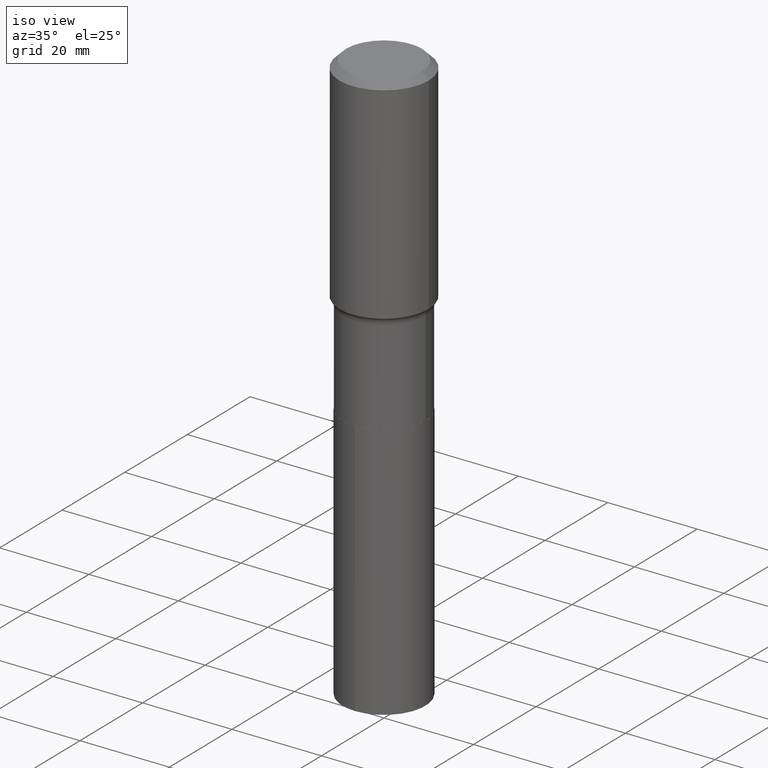
[diagram: clean part render]
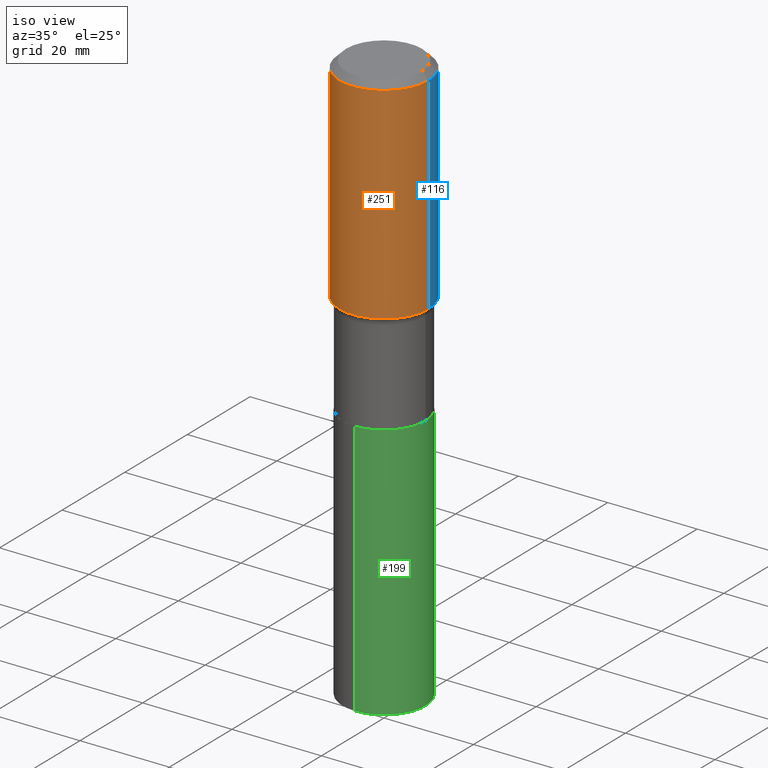
[diagram: same view with three faces highlighted in distinct colors, each labeled with its STEP entity id]
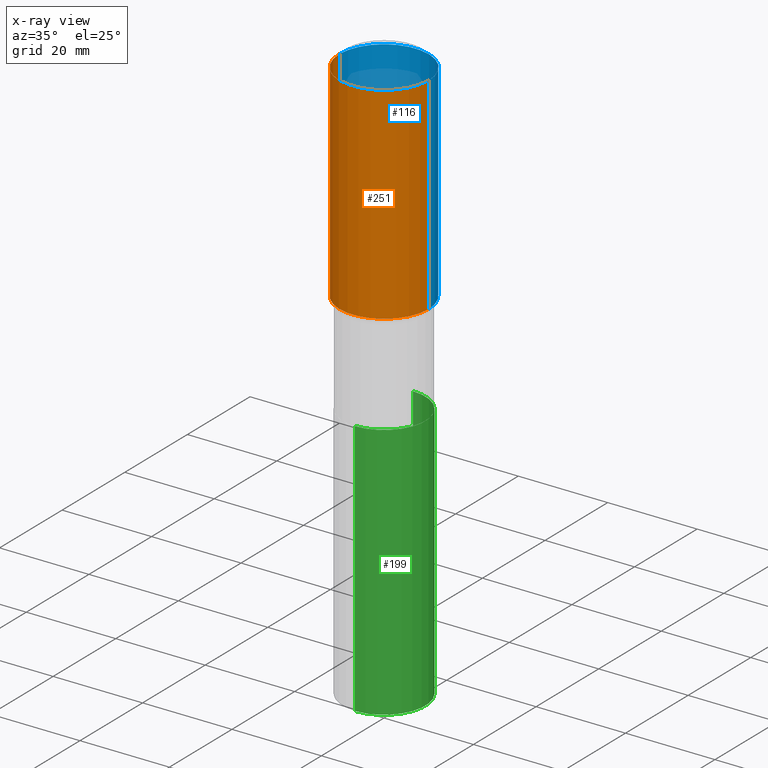
[diagram: x-ray of the same camera — body ghosted, the three highlighted faces saturated]
A machine part, iso view with three faces highlighted in distinct colors.
The next image is the same camera in x-ray (body ghosted, the three faces saturated) — at least one of them is partly hidden behind the body in this view.
Their STEP definitions:

[orange] entity #251 — the highlighted cylindrical surface (partial cylindrical patch) has radius 10 mm, axis along (-0, 0, 1).
#11 = EDGE_CURVE ( 'NONE', #316, #181, #106, .T. ) ;
#21 = ORIENTED_EDGE ( 'NONE', *, *, #435, .F. ) ;
#28 = VERTEX_POINT ( 'NONE', #291 ) ;
#38 = CARTESIAN_POINT ( 'NONE',  ( 4.590077173864083057E-29, -6.553413707777653647E-15, -1.876972285336354629 ) ) ;
#51 = DIRECTION ( 'NONE',  ( 1.000000000000000000, -6.982962677686266711E-15, 4.876176775795935793E-29 ) ) ;
#87 = CARTESIAN_POINT ( 'NONE',  ( -0.3937000000000001054, 2.797406750687515181E-15, -1.936584745033357016E-29 ) ) ;
#94 = ORIENTED_EDGE ( 'NONE', *, *, #125, .T. ) ;
#100 = VERTEX_POINT ( 'NONE', #163 ) ;
#106 = LINE ( 'NONE', #267, #306 ) ;
#125 = EDGE_CURVE ( 'NONE', #28, #316, #448, .T. ) ;
#131 = CARTESIAN_POINT ( 'NONE',  ( 1.444171603492640671E-30, -2.061894304653831493E-16, -0.05905500000000033639 ) ) ;
#142 = AXIS2_PLACEMENT_3D ( 'NONE', #131, #170, #395 ) ;
#163 = CARTESIAN_POINT ( 'NONE',  ( -0.3937000000000000499, -5.823948184340036238E-16, -0.05905500000000033639 ) ) ;
#169 = VECTOR ( 'NONE', #171, 39.37007874015748143 ) ;
#170 = DIRECTION ( 'NONE',  ( -2.445468806185136597E-29, 3.491481338843145583E-15, 1.000000000000000000 ) ) ;
#171 = DIRECTION ( 'NONE',  ( -2.445468806185136877E-29, 3.491481338843145188E-15, 1.000000000000000000 ) ) ;
#181 = VERTEX_POINT ( 'NONE', #335 ) ;
#184 = AXIS2_PLACEMENT_3D ( 'NONE', #393, #478, #51 ) ;
#219 = ORIENTED_EDGE ( 'NONE', *, *, #11, .T. ) ;
#236 = CARTESIAN_POINT ( 'NONE',  ( 0.3937000000000002164, -9.302606113982739230E-15, -1.876972285336354629 ) ) ;
#237 = DIRECTION ( 'NONE',  ( -2.445468806185136597E-29, 3.491481338843145583E-15, 1.000000000000000000 ) ) ;
#249 = LINE ( 'NONE', #87, #169 ) ;
#251 = ADVANCED_FACE ( 'NONE', ( #325 ), #397, .T. ) ;
#253 = EDGE_LOOP ( 'NONE', ( #21, #94, #219, #388 ) ) ;
#266 = AXIS2_PLACEMENT_3D ( 'NONE', #38, #237, #341 ) ;
#267 = CARTESIAN_POINT ( 'NONE',  ( 0.3937000000000001054, -2.749192406205084005E-15, 1.919750796630860452E-29 ) ) ;
#291 = CARTESIAN_POINT ( 'NONE',  ( -0.3937000000000002164, -3.756006957090138071E-15, -1.876972285336354629 ) ) ;
#306 = VECTOR ( 'NONE', #410, 39.37007874015748143 ) ;
#316 = VERTEX_POINT ( 'NONE', #236 ) ;
#325 = FACE_OUTER_BOUND ( 'NONE', #253, .T. ) ;
#335 = CARTESIAN_POINT ( 'NONE',  ( 0.3937000000000000499, -2.955381836670466588E-15, -0.05905500000000033639 ) ) ;
#341 = DIRECTION ( 'NONE',  ( 1.000000000000000000, -6.982962677686266711E-15, 0.000000000000000000 ) ) ;
#377 = EDGE_CURVE ( 'NONE', #100, #181, #471, .T. ) ;
#388 = ORIENTED_EDGE ( 'NONE', *, *, #377, .F. ) ;
#393 = CARTESIAN_POINT ( 'NONE',  ( 0.000000000000000000, 0.000000000000000000, 0.000000000000000000 ) ) ;
#395 = DIRECTION ( 'NONE',  ( 1.000000000000000000, -6.982962677686265922E-15, 0.000000000000000000 ) ) ;
#397 = CYLINDRICAL_SURFACE ( 'NONE', #184, 0.3937000000000001054 ) ;
#410 = DIRECTION ( 'NONE',  ( -2.445468806185136877E-29, 3.491481338843145188E-15, 1.000000000000000000 ) ) ;
#435 = EDGE_CURVE ( 'NONE', #28, #100, #249, .T. ) ;
#448 = CIRCLE ( 'NONE', #266, 0.3937000000000002164 ) ;
#471 = CIRCLE ( 'NONE', #142, 0.3937000000000000499 ) ;
#478 = DIRECTION ( 'NONE',  ( -2.445468806185136597E-29, 3.491481338843145583E-15, 1.000000000000000000 ) ) ;

[blue] entity #116 — the highlighted cylindrical surface (partial cylindrical patch) has radius 10 mm, axis along (-0, 0, 1).
#11 = EDGE_CURVE ( 'NONE', #316, #181, #106, .T. ) ;
#18 = CARTESIAN_POINT ( 'NONE',  ( 1.444171603492640671E-30, -2.061894304653831493E-16, -0.05905500000000033639 ) ) ;
#22 = CIRCLE ( 'NONE', #69, 0.3937000000000000499 ) ;
#28 = VERTEX_POINT ( 'NONE', #291 ) ;
#69 = AXIS2_PLACEMENT_3D ( 'NONE', #18, #284, #93 ) ;
#85 = CARTESIAN_POINT ( 'NONE',  ( 0.000000000000000000, 0.000000000000000000, 0.000000000000000000 ) ) ;
#87 = CARTESIAN_POINT ( 'NONE',  ( -0.3937000000000001054, 2.797406750687515181E-15, -1.936584745033357016E-29 ) ) ;
#93 = DIRECTION ( 'NONE',  ( 1.000000000000000000, -6.982962677686265922E-15, 0.000000000000000000 ) ) ;
#100 = VERTEX_POINT ( 'NONE', #163 ) ;
#106 = LINE ( 'NONE', #267, #306 ) ;
#116 = ADVANCED_FACE ( 'NONE', ( #454 ), #278, .T. ) ;
#158 = DIRECTION ( 'NONE',  ( 1.000000000000000000, -6.982962677686266711E-15, 4.876176775795935793E-29 ) ) ;
#163 = CARTESIAN_POINT ( 'NONE',  ( -0.3937000000000000499, -5.823948184340036238E-16, -0.05905500000000033639 ) ) ;
#169 = VECTOR ( 'NONE', #171, 39.37007874015748143 ) ;
#171 = DIRECTION ( 'NONE',  ( -2.445468806185136877E-29, 3.491481338843145188E-15, 1.000000000000000000 ) ) ;
#181 = VERTEX_POINT ( 'NONE', #335 ) ;
#206 = DIRECTION ( 'NONE',  ( -2.445468806185136597E-29, 3.491481338843145583E-15, 1.000000000000000000 ) ) ;
#207 = ORIENTED_EDGE ( 'NONE', *, *, #383, .T. ) ;
#216 = DIRECTION ( 'NONE',  ( 1.000000000000000000, -6.982962677686266711E-15, 0.000000000000000000 ) ) ;
#234 = DIRECTION ( 'NONE',  ( -2.445468806185136597E-29, 3.491481338843145583E-15, 1.000000000000000000 ) ) ;
#236 = CARTESIAN_POINT ( 'NONE',  ( 0.3937000000000002164, -9.302606113982739230E-15, -1.876972285336354629 ) ) ;
#245 = CARTESIAN_POINT ( 'NONE',  ( 4.590077173864083057E-29, -6.553413707777653647E-15, -1.876972285336354629 ) ) ;
#249 = LINE ( 'NONE', #87, #169 ) ;
#262 = ORIENTED_EDGE ( 'NONE', *, *, #435, .T. ) ;
#267 = CARTESIAN_POINT ( 'NONE',  ( 0.3937000000000001054, -2.749192406205084005E-15, 1.919750796630860452E-29 ) ) ;
#278 = CYLINDRICAL_SURFACE ( 'NONE', #407, 0.3937000000000001054 ) ;
#284 = DIRECTION ( 'NONE',  ( -2.445468806185136597E-29, 3.491481338843145583E-15, 1.000000000000000000 ) ) ;
#287 = ORIENTED_EDGE ( 'NONE', *, *, #331, .F. ) ;
#291 = CARTESIAN_POINT ( 'NONE',  ( -0.3937000000000002164, -3.756006957090138071E-15, -1.876972285336354629 ) ) ;
#306 = VECTOR ( 'NONE', #410, 39.37007874015748143 ) ;
#316 = VERTEX_POINT ( 'NONE', #236 ) ;
#331 = EDGE_CURVE ( 'NONE', #181, #100, #22, .T. ) ;
#335 = CARTESIAN_POINT ( 'NONE',  ( 0.3937000000000000499, -2.955381836670466588E-15, -0.05905500000000033639 ) ) ;
#354 = AXIS2_PLACEMENT_3D ( 'NONE', #245, #206, #216 ) ;
#383 = EDGE_CURVE ( 'NONE', #316, #28, #415, .T. ) ;
#406 = ORIENTED_EDGE ( 'NONE', *, *, #11, .F. ) ;
#407 = AXIS2_PLACEMENT_3D ( 'NONE', #85, #234, #158 ) ;
#410 = DIRECTION ( 'NONE',  ( -2.445468806185136877E-29, 3.491481338843145188E-15, 1.000000000000000000 ) ) ;
#415 = CIRCLE ( 'NONE', #354, 0.3937000000000002164 ) ;
#435 = EDGE_CURVE ( 'NONE', #28, #100, #249, .T. ) ;
#454 = FACE_OUTER_BOUND ( 'NONE', #470, .T. ) ;
#470 = EDGE_LOOP ( 'NONE', ( #207, #262, #287, #406 ) ) ;

[green] entity #199 — the highlighted cylindrical surface (partial cylindrical patch) has radius 9.2494 mm, axis along (-0, 0, 1).
#10 = CARTESIAN_POINT ( 'NONE',  ( 6.787643218447464969E-29, -9.690955604093032420E-15, -2.775599999999999845 ) ) ;
#23 = ORIENTED_EDGE ( 'NONE', *, *, #413, .T. ) ;
#48 = AXIS2_PLACEMENT_3D ( 'NONE', #57, #172, #54 ) ;
#54 = DIRECTION ( 'NONE',  ( -6.982962677686267499E-15, -1.000000000000000000, 3.000794171263779658E-15 ) ) ;
#57 = CARTESIAN_POINT ( 'NONE',  ( 6.787643218447464969E-29, -9.690955604093032420E-15, -2.775599999999999845 ) ) ;
#58 = VERTEX_POINT ( 'NONE', #453 ) ;
#62 = VERTEX_POINT ( 'NONE', #164 ) ;
#81 = DIRECTION ( 'NONE',  ( -2.445873502339336229E-29, 3.490901790916456454E-15, 1.000000000000000000 ) ) ;
#82 = EDGE_CURVE ( 'NONE', #58, #62, #276, .T. ) ;
#107 = EDGE_CURVE ( 'NONE', #422, #352, #311, .T. ) ;
#108 = DIRECTION ( 'NONE',  ( -2.445873502339336509E-29, 3.490901790916456848E-15, 1.000000000000000000 ) ) ;
#135 = ORIENTED_EDGE ( 'NONE', *, *, #264, .F. ) ;
#137 = CARTESIAN_POINT ( 'NONE',  ( 2.587441372270528886E-15, 0.3641499999999824877, -5.042683946029719699 ) ) ;
#164 = CARTESIAN_POINT ( 'NONE',  ( -2.542845859079385764E-15, -0.3641500000000096882, -2.775599999999998513 ) ) ;
#172 = DIRECTION ( 'NONE',  ( -2.445873502339336509E-29, 3.490901790916456848E-15, 1.000000000000000000 ) ) ;
#173 = ORIENTED_EDGE ( 'NONE', *, *, #82, .F. ) ;
#179 = ORIENTED_EDGE ( 'NONE', *, *, #107, .T. ) ;
#185 = CIRCLE ( 'NONE', #482, 0.3641499999999999737 ) ;
#189 = CARTESIAN_POINT ( 'NONE',  ( 1.233264376962045651E-28, -1.760512301144612665E-14, -5.042683946029718811 ) ) ;
#199 = ADVANCED_FACE ( 'NONE', ( #419 ), #343, .T. ) ;
#203 = DIRECTION ( 'NONE',  ( -2.445873502339336509E-29, 3.490901790916456848E-15, 1.000000000000000000 ) ) ;
#210 = EDGE_LOOP ( 'NONE', ( #23, #179, #135, #173 ) ) ;
#264 = EDGE_CURVE ( 'NONE', #62, #352, #329, .T. ) ;
#276 = LINE ( 'NONE', #372, #427 ) ;
#296 = DIRECTION ( 'NONE',  ( -6.982962677686267499E-15, -1.000000000000000000, 3.000794171263779658E-15 ) ) ;
#311 = LINE ( 'NONE', #375, #481 ) ;
#313 = DIRECTION ( 'NONE',  ( -6.982962677686267499E-15, -1.000000000000000000, 3.000794171263779658E-15 ) ) ;
#329 = CIRCLE ( 'NONE', #48, 0.3641499999999999737 ) ;
#343 = CYLINDRICAL_SURFACE ( 'NONE', #363, 0.3641499999999999737 ) ;
#352 = VERTEX_POINT ( 'NONE', #403 ) ;
#363 = AXIS2_PLACEMENT_3D ( 'NONE', #10, #203, #313 ) ;
#372 = CARTESIAN_POINT ( 'NONE',  ( -2.542845859079385764E-15, -0.3641500000000096882, -2.775599999999998513 ) ) ;
#375 = CARTESIAN_POINT ( 'NONE',  ( 2.587441372270472088E-15, 0.3641499999999903148, -2.775600000000000733 ) ) ;
#403 = CARTESIAN_POINT ( 'NONE',  ( 2.587441372270528097E-15, 0.3641499999999903148, -2.775600000000000733 ) ) ;
#413 = EDGE_CURVE ( 'NONE', #58, #422, #185, .T. ) ;
#419 = FACE_OUTER_BOUND ( 'NONE', #210, .T. ) ;
#422 = VERTEX_POINT ( 'NONE', #137 ) ;
#427 = VECTOR ( 'NONE', #81, 39.37007874015748143 ) ;
#453 = CARTESIAN_POINT ( 'NONE',  ( -2.542845859079330938E-15, -0.3641500000000177373, -5.042683946029717923 ) ) ;
#461 = DIRECTION ( 'NONE',  ( -2.445873502339336229E-29, 3.490901790916456454E-15, 1.000000000000000000 ) ) ;
#481 = VECTOR ( 'NONE', #461, 39.37007874015748143 ) ;
#482 = AXIS2_PLACEMENT_3D ( 'NONE', #189, #108, #296 ) ;